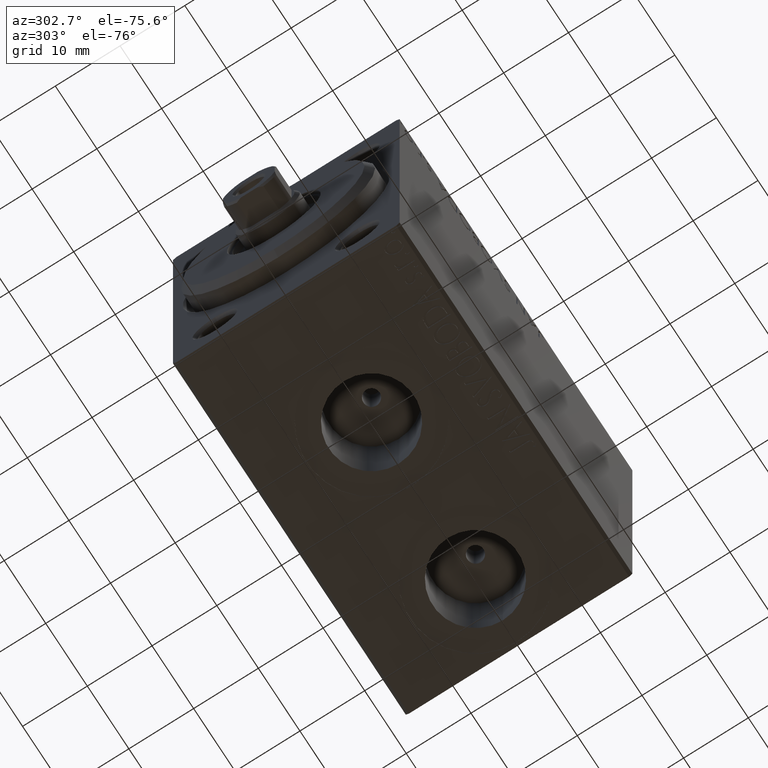
[diagram: clean part render]
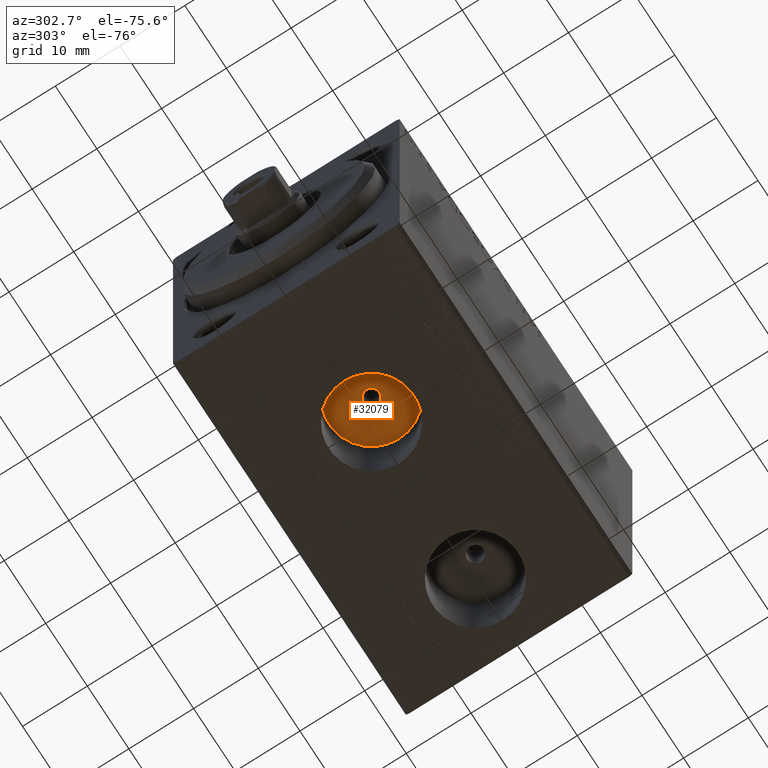
[diagram: same view with one face highlighted and labeled with its STEP entity id]
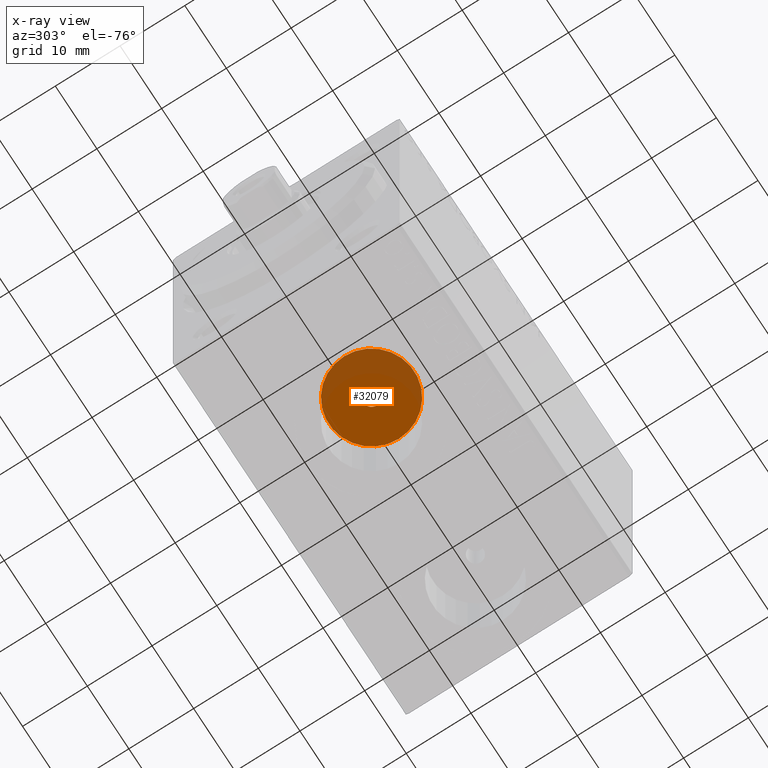
[diagram: x-ray of the same camera — body ghosted, the highlighted face saturated]
A machine part, auxiliary view. The second image highlights one B-rep face of the part: STEP entity #32079.
The next image is the same camera in x-ray: the body ghosted, the highlighted face saturated — about 33% of this face is hidden behind the body in this view.
In plain terms, the highlighted planar face has unit normal (0, 0, -1).
Its self-contained STEP definition (entity closure, byte-faithful):
#565 = VERTEX_POINT ( 'NONE', #3345 ) ;
#1307 = EDGE_CURVE ( 'NONE', #23069, #38452, #38449, .T. ) ;
#3345 = CARTESIAN_POINT ( 'NONE',  ( 21.75000000000000355, -2.451861106603238469E-15, -14.50000000000000711 ) ) ;
#3793 = CARTESIAN_POINT ( 'NONE',  ( 20.50000000000000355, -2.726986211408916281E-15, -14.50000000000000711 ) ) ;
#6736 = EDGE_CURVE ( 'NONE', #565, #7912, #11319, .T. ) ;
#7912 = VERTEX_POINT ( 'NONE', #22765 ) ;
#11319 = CIRCLE ( 'NONE', #18670, 1.249999999999997558 ) ;
#11434 = DIRECTION ( 'NONE',  ( -1.000000000000000000, 0.000000000000000000, 0.000000000000000000 ) ) ;
#14913 = DIRECTION ( 'NONE',  ( -1.000000000000000000, 0.000000000000000000, 0.000000000000000000 ) ) ;
#15212 = CIRCLE ( 'NONE', #18126, 1.249999999999997558 ) ;
#17135 = FACE_BOUND ( 'NONE', #37855, .T. ) ;
#18047 = FACE_OUTER_BOUND ( 'NONE', #41352, .T. ) ;
#18126 = AXIS2_PLACEMENT_3D ( 'NONE', #35884, #32881, #14913 ) ;
#18670 = AXIS2_PLACEMENT_3D ( 'NONE', #22357, #35708, #32477 ) ;
#18930 = EDGE_CURVE ( 'NONE', #7912, #565, #15212, .T. ) ;
#19488 = ORIENTED_EDGE ( 'NONE', *, *, #1307, .T. ) ;
#19898 = DIRECTION ( 'NONE',  ( -1.000000000000000000, 0.000000000000000000, 0.000000000000000000 ) ) ;
#20190 = EDGE_CURVE ( 'NONE', #38452, #23069, #25515, .T. ) ;
#20200 = AXIS2_PLACEMENT_3D ( 'NONE', #3793, #41784, #25174 ) ;
#22242 = DIRECTION ( 'NONE',  ( 0.000000000000000000, 0.000000000000000000, -1.000000000000000000 ) ) ;
#22357 = CARTESIAN_POINT ( 'NONE',  ( 20.50000000000000355, -2.604941956496657404E-15, -14.50000000000000711 ) ) ;
#22453 = CARTESIAN_POINT ( 'NONE',  ( 27.08000000000000540, -1.921168617569958028E-15, -14.50000000000000711 ) ) ;
#22765 = CARTESIAN_POINT ( 'NONE',  ( 19.25000000000000711, -2.604941956496657404E-15, -14.50000000000000711 ) ) ;
#23069 = VERTEX_POINT ( 'NONE', #22453 ) ;
#24889 = CARTESIAN_POINT ( 'NONE',  ( 13.92000000000000171, -2.726986211408916281E-15, -14.50000000000000711 ) ) ;
#25174 = DIRECTION ( 'NONE',  ( -1.000000000000000000, 0.000000000000000000, -0.000000000000000000 ) ) ;
#25448 = CARTESIAN_POINT ( 'NONE',  ( 20.50000000000000355, -2.726986211408916281E-15, -14.50000000000000711 ) ) ;
#25515 = CIRCLE ( 'NONE', #38020, 6.580000000000002736 ) ;
#30104 = ORIENTED_EDGE ( 'NONE', *, *, #18930, .F. ) ;
#32079 = ADVANCED_FACE ( 'NONE', ( #17135, #18047 ), #45236, .T. ) ;
#32477 = DIRECTION ( 'NONE',  ( -1.000000000000000000, 0.000000000000000000, 0.000000000000000000 ) ) ;
#32881 = DIRECTION ( 'NONE',  ( 0.000000000000000000, 0.000000000000000000, -1.000000000000000000 ) ) ;
#34609 = DIRECTION ( 'NONE',  ( 0.000000000000000000, 0.000000000000000000, -1.000000000000000000 ) ) ;
#34772 = AXIS2_PLACEMENT_3D ( 'NONE', #44075, #34609, #19898 ) ;
#35708 = DIRECTION ( 'NONE',  ( 0.000000000000000000, 0.000000000000000000, -1.000000000000000000 ) ) ;
#35884 = CARTESIAN_POINT ( 'NONE',  ( 20.50000000000000355, -2.604941956496657404E-15, -14.50000000000000711 ) ) ;
#37855 = EDGE_LOOP ( 'NONE', ( #30104, #41686 ) ) ;
#38020 = AXIS2_PLACEMENT_3D ( 'NONE', #25448, #22242, #11434 ) ;
#38449 = CIRCLE ( 'NONE', #34772, 6.580000000000002736 ) ;
#38452 = VERTEX_POINT ( 'NONE', #24889 ) ;
#41352 = EDGE_LOOP ( 'NONE', ( #43531, #19488 ) ) ;
#41686 = ORIENTED_EDGE ( 'NONE', *, *, #6736, .F. ) ;
#41784 = DIRECTION ( 'NONE',  ( 0.000000000000000000, 0.000000000000000000, -1.000000000000000000 ) ) ;
#43531 = ORIENTED_EDGE ( 'NONE', *, *, #20190, .T. ) ;
#44075 = CARTESIAN_POINT ( 'NONE',  ( 20.50000000000000355, -2.726986211408916281E-15, -14.50000000000000711 ) ) ;
#45236 = PLANE ( 'NONE',  #20200 ) ;